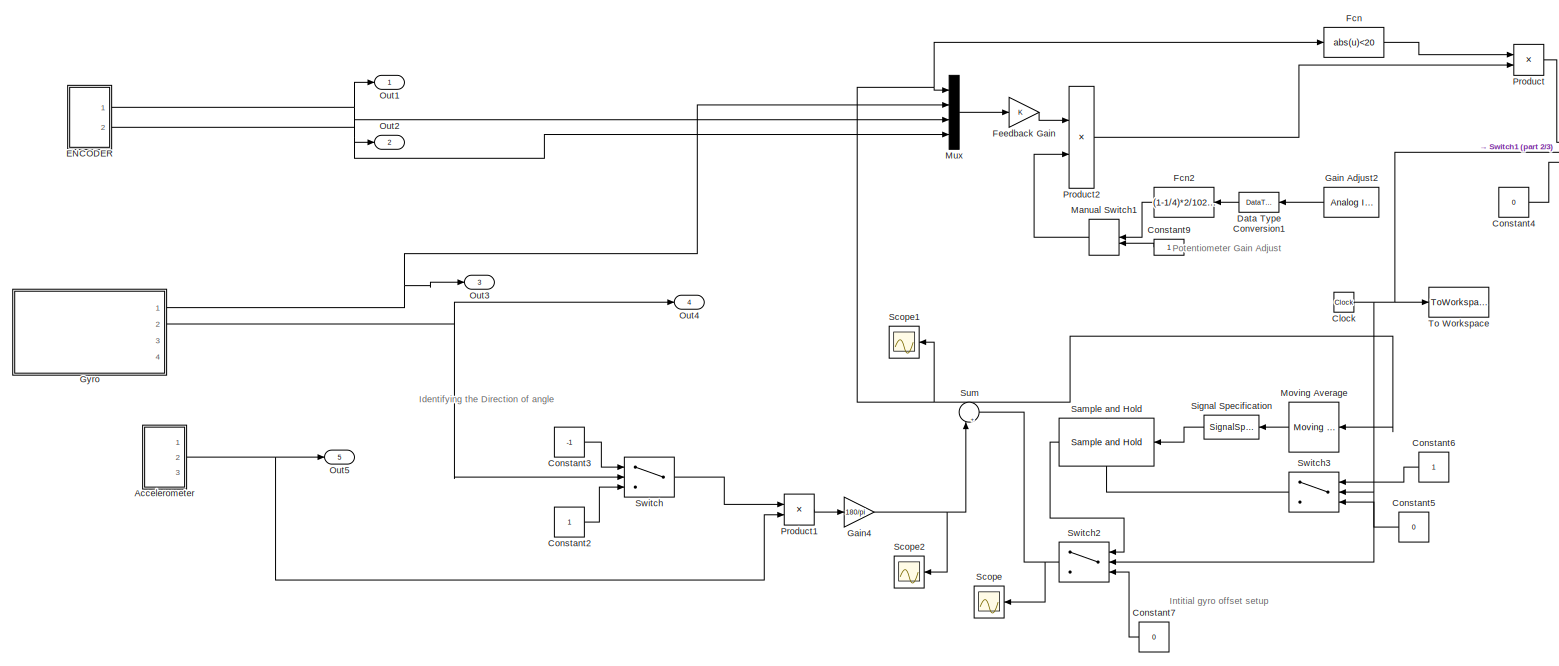
[diagram: root canvas - part 1/3, top left region]
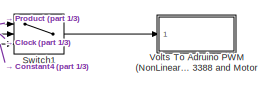
[diagram: root canvas - part 2/3, top center region]
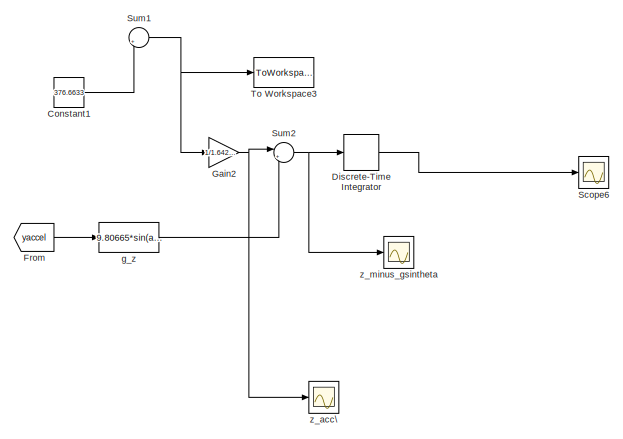
[diagram: root canvas - part 3/3, bottom right region]
MODEL slx_d5ed40e56a68
KIND model
CONFIG AbsTol = auto
CONFIG EnableMultiTasking = on
CONFIG FixedStep = auto
CONFIG MaxStep = auto
CONFIG MinStep = auto
CONFIG RelTol = 1e-3
CONFIG SampleTimeConstraint = Unconstrained
CONFIG Solver = FixedStepDiscrete
CONFIG SolverName = FixedStepDiscrete
CONFIG StartTime = 0.0
CONFIG StopTime = inf
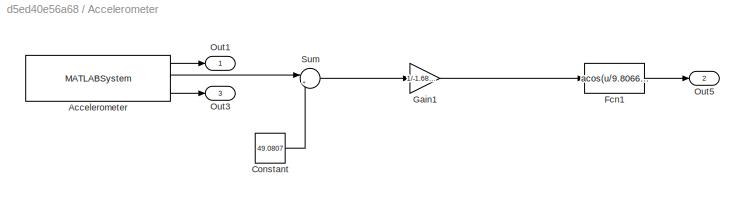
BLOCK [SubSystem] Accelerometer
  Ports = [0, 3]
  RequestExecContextInheritance = off
BLOCK [MATLABSystem] Accelerometer/Accelerometer
  MaskDisplay = disp('soMPU6050Accel');\nport_label('output',1,'xaccel');\nport_label('output',2,'yaccel');\nport_label('output',3,'zaccel');
  MaskType = soMPU6050Accel
  Ports = [0, 3]
  SimulateUsing = Code generation
  System = soMPU6050Accel
BLOCK [Constant] Accelerometer/Constant
  Value = 49.0807
BLOCK [Fcn] Accelerometer/Fcn1
  Expr = acos(u/9.80665)
BLOCK [Gain] Accelerometer/Gain1
  Gain = 1/-1.6809e+03
  OutDataTypeStr = Inherit: Inherit via internal rule
  ParamDataTypeStr = Inherit: Inherit via internal rule
  SaturateOnIntegerOverflow = off
BLOCK [Outport] Accelerometer/Out1
  IconDisplay = Port number
BLOCK [Outport] Accelerometer/Out3
  IconDisplay = Port number
  Port = 3
BLOCK [Outport] Accelerometer/Out5
  IconDisplay = Signal name
  Port = 2
BLOCK [Sum] Accelerometer/Sum
  IconShape = round
  InputSameDT = off
  Inputs = |++
  OutDataTypeStr = Inherit: Inherit via internal rule
  Ports = [2, 1]
  SaturateOnIntegerOverflow = off
BLOCK [Clock] Clock
BLOCK [Constant] Constant1
  Value = 376.6633
BLOCK [Constant] Constant2
BLOCK [Constant] Constant3
  Value = -1
BLOCK [Constant] Constant4
  Value = 0
BLOCK [Constant] Constant5
  Value = 0
BLOCK [Constant] Constant6
BLOCK [Constant] Constant7
  Value = 0
BLOCK [Constant] Constant9
BLOCK [DataTypeConversion] Data Type Conversion1
  OutDataTypeStr = double
  RndMeth = Floor
  SaturateOnIntegerOverflow = off
BLOCK [DiscreteIntegrator] Discrete-Time Integrator
  ICPrevOutput = DiscIntNeverNeededParam
  ICPrevScaledInput = DiscIntNeverNeededParam
  InitialConditionSetting = Auto
  Ports = [1, 1]
  SampleTime = -1
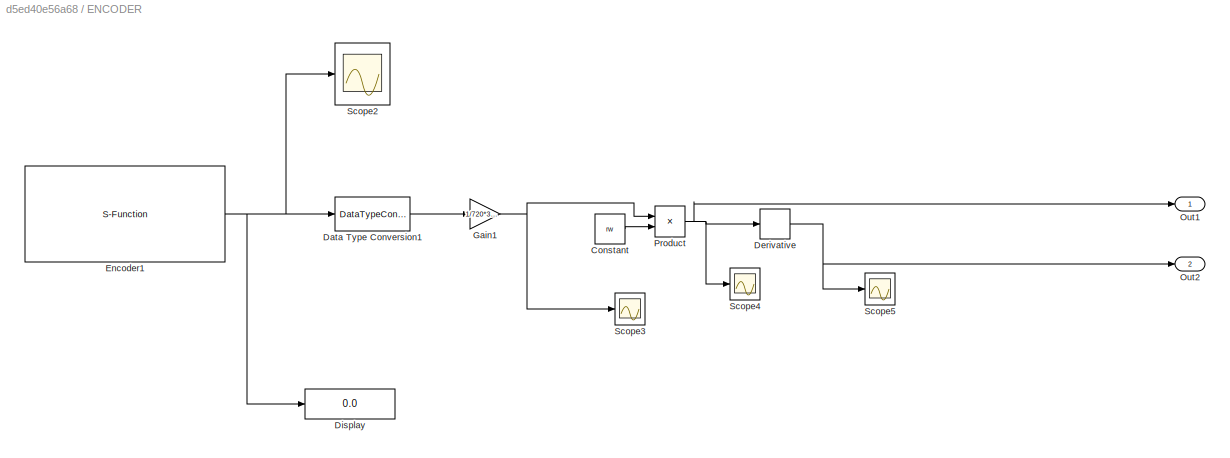
BLOCK [SubSystem] ENCODER 
  Ports = [0, 2]
  RequestExecContextInheritance = off
BLOCK [Constant] ENCODER /Constant
  Value = rw
BLOCK [DataTypeConversion] ENCODER /Data Type Conversion1
  OutDataTypeStr = double
  RndMeth = Floor
  SaturateOnIntegerOverflow = off
BLOCK [Derivative] ENCODER /Derivative
BLOCK [Display] ENCODER /Display
  Decimation = 1
  Ports = [1]
BLOCK [S-Function] ENCODER /Encoder1
  CopyFcn = set_param(gcbh,'LinkStatus','none')
  EnableBusSupport = off
  FunctionName = sf_Encoder_18_19
  InitFcn = try, set_param(gcb,'FunctionName','sf_Encoder_18_19'), end
  OpenFcn = sfunctionwizard(gcbh)
  Parameters = uint8(0),uint8(18),uint8(19)
  Ports = [0, 1]
  PreSaveFcn = try, set_param(gcb,'FunctionName','sf_Encoder_18_19'), end
  SFcnIsStateOwnerBlock = off
  SFunctionDeploymentMode = off
  SFunctionModules = sf_Encoder_18_19_wrapper
BLOCK [Gain] ENCODER /Gain1
  Gain = 1/720*360*pi/180
  OutDataTypeStr = Inherit: Inherit via internal rule
  ParamDataTypeStr = Inherit: Inherit via internal rule
  SaturateOnIntegerOverflow = off
BLOCK [Outport] ENCODER /Out1
  IconDisplay = Signal name
BLOCK [Outport] ENCODER /Out2
  IconDisplay = Signal name
  Port = 2
BLOCK [Product] ENCODER /Product
  InputSameDT = off
  OutDataTypeStr = Inherit: Inherit via internal rule
  Ports = [2, 1]
  RndMeth = Floor
  SaturateOnIntegerOverflow = off
BLOCK [Scope] ENCODER /Scope2
  Floating = off
  NumInputPorts = 1
  Ports = [1]
  ScopeSpecificationString = Simulink.scopes.TimeScopeBlockCfg('CurrentConfiguration', extmgr.ConfigurationSet(extmgr.Configuration('Core','General UI',true),extmgr.Configuration('Core','Source UI',true),extmgr.Configuration('Sources','WiredSimulink',true,'DataLoggingVariableName','ScopeData1'),extmgr.Configuration('Visuals','Time Domain',true,'SerializedDisplays',{struct('MinYLimReal','22.00000','MaxYLimReal','42.00000','YLa...<+1447ch>
BLOCK [Scope] ENCODER /Scope3
  Floating = off
  NumInputPorts = 1
  Ports = [1]
  ScopeSpecificationString = Simulink.scopes.TimeScopeBlockCfg('CurrentConfiguration', extmgr.ConfigurationSet(extmgr.Configuration('Core','General UI',true),extmgr.Configuration('Core','Source UI',true),extmgr.Configuration('Sources','WiredSimulink',true,'DataLoggingVariableName','ScopeData2'),extmgr.Configuration('Visuals','Time Domain',true,'SerializedDisplays',{struct('MinYLimReal','-1.00000','MaxYLimReal','1.00000','YLab...<+1420ch>
BLOCK [Scope] ENCODER /Scope4
  Floating = off
  NumInputPorts = 1
  Ports = [1]
  ScopeSpecificationString = Simulink.scopes.TimeScopeBlockCfg('CurrentConfiguration', extmgr.ConfigurationSet(extmgr.Configuration('Core','General UI',true),extmgr.Configuration('Core','Source UI',true),extmgr.Configuration('Sources','WiredSimulink',true,'DataLoggingVariableName','ScopeData1'),extmgr.Configuration('Visuals','Time Domain',true,'SerializedDisplays',{struct('MinYLimReal','-0.31771','MaxYLimReal','-0.11771','YLa...<+1448ch>
BLOCK [Scope] ENCODER /Scope5
  Floating = off
  NumInputPorts = 1
  Ports = [1]
  ScopeSpecificationString = Simulink.scopes.TimeScopeBlockCfg('CurrentConfiguration', extmgr.ConfigurationSet(extmgr.Configuration('Core','General UI',true),extmgr.Configuration('Core','Source UI',true),extmgr.Configuration('Sources','WiredSimulink',true,'DataLoggingVariableName','ScopeData2'),extmgr.Configuration('Visuals','Time Domain',true,'SerializedDisplays',{struct('MinYLimReal','-1.00000','MaxYLimReal','1.00000','YLab...<+1423ch>
BLOCK [Fcn] Fcn
  Expr = abs(u)<20
BLOCK [Fcn] Fcn2
  Expr = (1-1/4)*2/1023*u(1)+1/4
BLOCK [Gain] Feedback Gain
  Gain = K
  Multiplication = Matrix(K*u)
  OutDataTypeStr = Inherit: Inherit via internal rule
  ParamDataTypeStr = Inherit: Inherit via internal rule
  SaturateOnIntegerOverflow = off
BLOCK [From] From
  GotoTag = yaccel
BLOCK [Reference] Gain Adjust2  REF=arduinolib/Analog Input
  Ports = [0, 1]
  SourceBlock = arduinolib/Analog Input
  SourceProductBaseCode = ARDUINO
  SourceProductName = Simulink Support Package for Arduino Hardware
  SourceType = Arduino Analog Input
BLOCK [Gain] Gain2
  Gain = 1/1.6420e+03
  OutDataTypeStr = Inherit: Inherit via internal rule
  ParamDataTypeStr = Inherit: Inherit via internal rule
  SaturateOnIntegerOverflow = off
BLOCK [Gain] Gain4
  Gain = 180/pi
  OutDataTypeStr = Inherit: Inherit via internal rule
  ParamDataTypeStr = Inherit: Inherit via internal rule
  SaturateOnIntegerOverflow = off
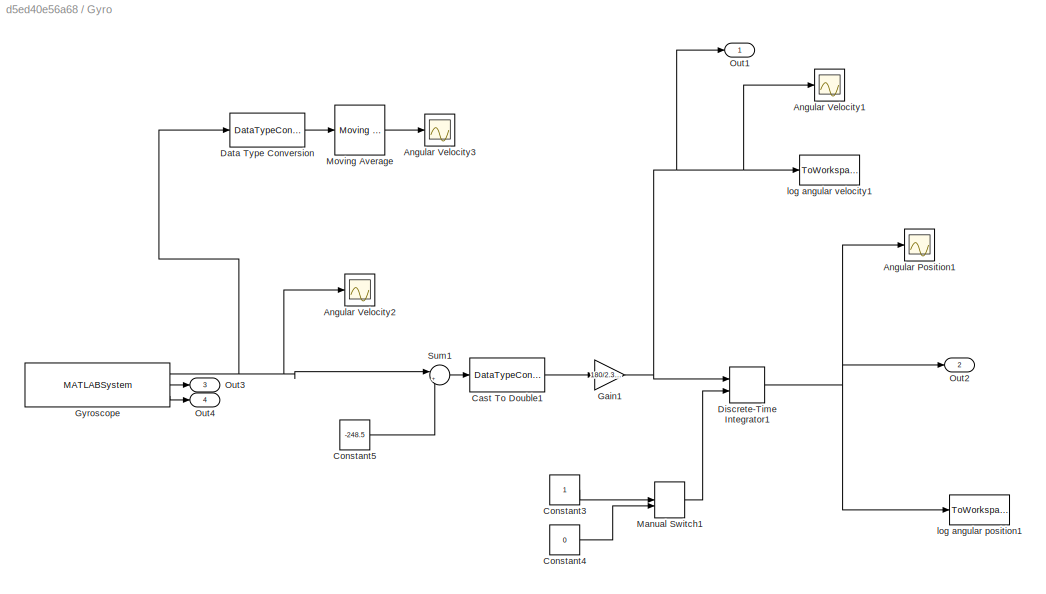
BLOCK [SubSystem] Gyro
  Ports = [0, 4]
  RequestExecContextInheritance = off
BLOCK [Scope] Gyro/Angular Position1
  Floating = off
  NumInputPorts = 1
  Ports = [1]
  ScopeSpecificationString = Simulink.scopes.TimeScopeBlockCfg('CurrentConfiguration', extmgr.ConfigurationSet(extmgr.Configuration('Core','General UI',true),extmgr.Configuration('Core','Source UI',true),extmgr.Configuration('Sources','WiredSimulink',true,'DataLoggingVariableName','ScopeData1'),extmgr.Configuration('Visuals','Time Domain',true,'SerializedDisplays',{struct('MinYLimReal','51.34352','MaxYLimReal','51.81475','YLa...<+1804ch>
BLOCK [Scope] Gyro/Angular Velocity1
  Floating = off
  NumInputPorts = 1
  Ports = [1]
  ScopeSpecificationString = Simulink.scopes.TimeScopeBlockCfg('CurrentConfiguration', extmgr.ConfigurationSet(extmgr.Configuration('Core','General UI',true),extmgr.Configuration('Core','Source UI',true),extmgr.Configuration('Sources','WiredSimulink',true,'DataLoggingVariableName','ScopeData2'),extmgr.Configuration('Visuals','Time Domain',true,'SerializedDisplays',{struct('MinYLimReal','-308.80943','MaxYLimReal','312.57174','...<+1531ch>
BLOCK [Scope] Gyro/Angular Velocity2
  Floating = off
  NumInputPorts = 1
  Ports = [1]
  ScopeSpecificationString = Simulink.scopes.TimeScopeBlockCfg('CurrentConfiguration', extmgr.ConfigurationSet(extmgr.Configuration('Core','General UI',true),extmgr.Configuration('Core','Source UI',true),extmgr.Configuration('Sources','WiredSimulink',true),extmgr.Configuration('Visuals','Time Domain',true,'SerializedDisplays',{struct('MinYLimReal','-40959.875','MaxYLimReal','40958.875','YLabelReal','','MinYLimMag','   0.00000...<+1528ch>
BLOCK [Scope] Gyro/Angular Velocity3
  Floating = off
  NumInputPorts = 1
  Ports = [1]
  ScopeSpecificationString = Simulink.scopes.TimeScopeBlockCfg('CurrentConfiguration', extmgr.ConfigurationSet(extmgr.Configuration('Core','General UI',true),extmgr.Configuration('Core','Source UI',true),extmgr.Configuration('Sources','WiredSimulink',true,'DataLoggingVariableName','ScopeData3'),extmgr.Configuration('Visuals','Time Domain',true,'SerializedDisplays',{struct('MinYLimReal','-4948.37381','MaxYLimReal','3597.3638',...<+1572ch>
BLOCK [DataTypeConversion] Gyro/Cast To Double1
  OutDataTypeStr = double
  RndMeth = Floor
  SaturateOnIntegerOverflow = off
BLOCK [Constant] Gyro/Constant3
BLOCK [Constant] Gyro/Constant4
  Value = 0
BLOCK [Constant] Gyro/Constant5
  Value = -248.5
BLOCK [DataTypeConversion] Gyro/Data Type Conversion
  OutDataTypeStr = double
  RndMeth = Floor
  SaturateOnIntegerOverflow = off
BLOCK [DiscreteIntegrator] Gyro/Discrete-Time Integrator1
  ExternalReset = either
  ICPrevOutput = DiscIntNeverNeededParam
  ICPrevScaledInput = DiscIntNeverNeededParam
  InitialConditionSetting = Auto
  Ports = [2, 1]
  SampleTime = -1
BLOCK [Gain] Gyro/Gain1
  Gain = 180/2.373e4
  OutDataTypeStr = Inherit: Inherit via internal rule
  ParamDataTypeStr = Inherit: Inherit via internal rule
  SaturateOnIntegerOverflow = off
BLOCK [MATLABSystem] Gyro/Gyroscope
  DLPFmode = 0
  MaskDisplay = disp('soMPU6050Gyro');\nport_label('output',1,'xvel');\nport_label('output',2,'yvel');\nport_label('output',3,'zvel');
  MaskType = soMPU6050Gyro
  Ports = [0, 3]
  System = soMPU6050Gyro
BLOCK [ManualSwitch] Gyro/Manual Switch1
BLOCK [Reference] Gyro/Moving Average  REF=dspstat3/Moving
Average
  Ports = [1, 1]
  SourceBlock = dspstat3/Moving\nAverage
  SourceProductBaseCode = DS
  SourceProductName = DSP System Toolbox
  SourceType = dsp.simulink.MovingAverage
BLOCK [Outport] Gyro/Out1
  IconDisplay = Signal name
BLOCK [Outport] Gyro/Out2
  IconDisplay = Signal name
  Port = 2
BLOCK [Outport] Gyro/Out3
  IconDisplay = Port number
  Port = 3
BLOCK [Outport] Gyro/Out4
  IconDisplay = Port number
  Port = 4
BLOCK [Sum] Gyro/Sum1
  IconShape = round
  InputSameDT = off
  Inputs = |+-
  OutDataTypeStr = Inherit: Inherit via internal rule
  Ports = [2, 1]
  SaturateOnIntegerOverflow = off
BLOCK [ToWorkspace] Gyro/log angular position1
  FixptAsFi = on
  MaxDataPoints = inf
  Ports = [1]
  SampleTime = -1
  Save2DSignal = 3-D array (concatenate along third dimension)
  VariableName = a_pos1
BLOCK [ToWorkspace] Gyro/log angular velocity1
  FixptAsFi = on
  MaxDataPoints = inf
  Ports = [1]
  SampleTime = -1
  Save2DSignal = 3-D array (concatenate along third dimension)
  VariableName = a_vel1
BLOCK [ManualSwitch] Manual Switch1
  CurrentSetting = 0
BLOCK [Reference] Moving Average  REF=dspstat3/Moving
Average
  Ports = [1, 1]
  SourceBlock = dspstat3/Moving\nAverage
  SourceProductBaseCode = DS
  SourceProductName = DSP System Toolbox
  SourceType = dsp.simulink.MovingAverage
BLOCK [Mux] Mux
  DisplayOption = bar
  Ports = [4, 1]
BLOCK [Outport] Out1
  IconDisplay = Signal name
  SignalName = Position
BLOCK [Outport] Out2
  IconDisplay = Signal name
  Port = 2
  SignalName = Velocity
BLOCK [Outport] Out3
  IconDisplay = Signal name
  Port = 3
  SignalName = Angular Velocity
BLOCK [Outport] Out4
  IconDisplay = Signal name
  Port = 4
  SignalName = Angular Position
BLOCK [Outport] Out5
  IconDisplay = Signal name
  Port = 5
  SignalName = abs_alpha
BLOCK [Product] Product
  InputSameDT = off
  OutDataTypeStr = Inherit: Inherit via internal rule
  Ports = [2, 1]
  RndMeth = Floor
  SaturateOnIntegerOverflow = off
BLOCK [Product] Product1
  InputSameDT = off
  OutDataTypeStr = Inherit: Inherit via internal rule
  Ports = [2, 1]
  RndMeth = Floor
  SaturateOnIntegerOverflow = off
BLOCK [Product] Product2
  InputSameDT = off
  OutDataTypeStr = Inherit: Inherit via internal rule
  Ports = [2, 1]
  SaturateOnIntegerOverflow = off
BLOCK [Reference] Sample and Hold  REF=dspsigops/Sample
and Hold
  Ports = [1, 1, 0, 1]
  SourceBlock = dspsigops/Sample\nand Hold
  SourceProductBaseCode = DS
  SourceProductName = DSP System Toolbox
  SourceType = Sample and Hold
BLOCK [Scope] Scope
  Floating = off
  NumInputPorts = 1
  Ports = [1]
  ScopeSpecificationString = Simulink.scopes.TimeScopeBlockCfg('CurrentConfiguration', extmgr.ConfigurationSet(extmgr.Configuration('Core','General UI',true),extmgr.Configuration('Core','Source UI',true),extmgr.Configuration('Sources','WiredSimulink',true,'DataLoggingVariableName','ScopeData1'),extmgr.Configuration('Visuals','Time Domain',true,'SerializedDisplays',{struct('MinYLimReal','-2.19941','MaxYLimReal','-0.19941','YLa...<+1462ch>
BLOCK [Scope] Scope1
  Floating = off
  NumInputPorts = 1
  Ports = [1]
  ScopeSpecificationString = Simulink.scopes.TimeScopeBlockCfg('CurrentConfiguration', extmgr.ConfigurationSet(extmgr.Configuration('Core','General UI',true),extmgr.Configuration('Core','Source UI',true),extmgr.Configuration('Sources','WiredSimulink',true,'DataLoggingVariableName','ScopeData2'),extmgr.Configuration('Visuals','Time Domain',true,'SerializedDisplays',{struct('MinYLimReal','-2.91738','MaxYLimReal','38.25057','YLa...<+1500ch>
BLOCK [Scope] Scope2
  Floating = off
  NumInputPorts = 1
  Ports = [1]
  ScopeSpecificationString = Simulink.scopes.TimeScopeBlockCfg('CurrentConfiguration', extmgr.ConfigurationSet(extmgr.Configuration('Core','General UI',true),extmgr.Configuration('Core','Source UI',true),extmgr.Configuration('Sources','WiredSimulink',true,'DataLoggingVariableName','ScopeData3'),extmgr.Configuration('Visuals','Time Domain',true,'SerializedDisplays',{struct('MinYLimReal','-4.1168','MaxYLimReal','37.05116','YLab...<+1473ch>
BLOCK [Scope] Scope6
  Floating = off
  NumInputPorts = 1
  Ports = [1]
  ScopeSpecificationString = Simulink.scopes.TimeScopeBlockCfg('CurrentConfiguration', extmgr.ConfigurationSet(extmgr.Configuration('Core','General UI',true),extmgr.Configuration('Core','Source UI',true),extmgr.Configuration('Sources','WiredSimulink',true,'DataLoggingVariableName','ScopeData6'),extmgr.Configuration('Visuals','Time Domain',true,'SerializedDisplays',{struct('MinYLimReal','-0.01557','MaxYLimReal','0.14012','YLab...<+1501ch>
BLOCK [SignalSpecification] Signal Specification
  Dimensions = 1
  OutDataTypeStr = double
BLOCK [Sum] Sum
  IconShape = round
  InputSameDT = off
  Inputs = |+-
  OutDataTypeStr = Inherit: Inherit via internal rule
  Ports = [2, 1]
  SaturateOnIntegerOverflow = off
BLOCK [Sum] Sum1
  IconShape = round
  InputSameDT = off
  Inputs = |++
  OutDataTypeStr = Inherit: Inherit via internal rule
  Ports = [2, 1]
  SaturateOnIntegerOverflow = off
BLOCK [Sum] Sum2
  IconShape = round
  InputSameDT = off
  Inputs = |+-
  OutDataTypeStr = Inherit: Inherit via internal rule
  Ports = [2, 1]
  SaturateOnIntegerOverflow = off
BLOCK [Switch] Switch
  Criteria = u2 > Threshold
  InputSameDT = off
  SaturateOnIntegerOverflow = off
BLOCK [Switch] Switch1
  Criteria = u2 > Threshold
  InputSameDT = off
  SaturateOnIntegerOverflow = off
  Threshold = 10
BLOCK [Switch] Switch2
  Criteria = u2 > Threshold
  InputSameDT = off
  SaturateOnIntegerOverflow = off
  Threshold = 10
BLOCK [Switch] Switch3
  Criteria = u2 > Threshold
  InputSameDT = off
  SaturateOnIntegerOverflow = off
  Threshold = 10
BLOCK [ToWorkspace] To Workspace
  FixptAsFi = on
  MaxDataPoints = inf
  Ports = [1]
  SampleTime = -1
  Save2DSignal = 3-D array (concatenate along third dimension)
  VariableName = t
BLOCK [ToWorkspace] To Workspace3
  FixptAsFi = on
  MaxDataPoints = inf
  Ports = [1]
  SampleTime = -1
  Save2DSignal = 2-D array (concatenate along first dimension)
  VariableName = t3
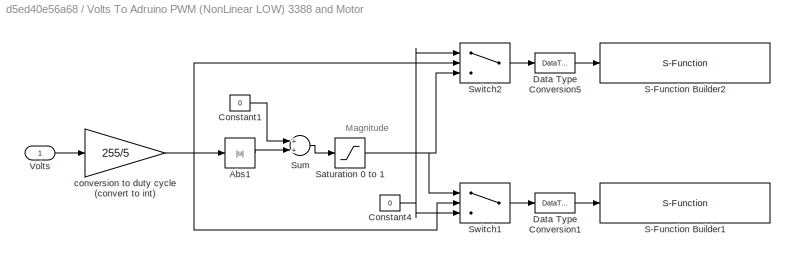
BLOCK [SubSystem] Volts To Adruino PWM (NonLinear LOW) 3388 and Motor
  Ports = [1]
  RequestExecContextInheritance = off
BLOCK [Abs] Volts To Adruino PWM (NonLinear LOW) 3388 and Motor/Abs1
  SaturateOnIntegerOverflow = off
BLOCK [Constant] Volts To Adruino PWM (NonLinear LOW) 3388 and Motor/Constant1
  Value = 0
BLOCK [Constant] Volts To Adruino PWM (NonLinear LOW) 3388 and Motor/Constant4
  Value = 0
BLOCK [DataTypeConversion] Volts To Adruino PWM (NonLinear LOW) 3388 and Motor/Data Type Conversion1
  OutDataTypeStr = uint8
  RndMeth = Floor
  SaturateOnIntegerOverflow = off
BLOCK [DataTypeConversion] Volts To Adruino PWM (NonLinear LOW) 3388 and Motor/Data Type Conversion5
  OutDataTypeStr = uint8
  RndMeth = Floor
  SaturateOnIntegerOverflow = off
BLOCK [S-Function] Volts To Adruino PWM (NonLinear LOW) 3388 and Motor/S-Function Builder1
  CopyFcn = set_param(gcbh,'LinkStatus','none')
  EnableBusSupport = off
  FunctionName = sfcn_PWM45
  InitFcn = try, set_param(gcb,'FunctionName','sfcn_PWM45'), end
  OpenFcn = sfunctionwizard(gcbh)
  Parameters = uint8(5)
  Ports = [1]
  PreSaveFcn = try, set_param(gcb,'FunctionName','sfcn_PWM45'), end
  SFcnIsStateOwnerBlock = off
  SFunctionDeploymentMode = off
  SFunctionModules = sfcn_PWM45_wrapper
BLOCK [S-Function] Volts To Adruino PWM (NonLinear LOW) 3388 and Motor/S-Function Builder2
  CopyFcn = set_param(gcbh,'LinkStatus','none')
  EnableBusSupport = off
  FunctionName = sfcn_PWM44
  InitFcn = try, set_param(gcb,'FunctionName','sfcn_PWM44'), end
  OpenFcn = sfunctionwizard(gcbh)
  Parameters = uint8(2)
  Ports = [1]
  PreSaveFcn = try, set_param(gcb,'FunctionName','sfcn_PWM44'), end
  SFcnIsStateOwnerBlock = off
  SFunctionDeploymentMode = off
  SFunctionModules = sfcn_PWM44_wrapper
BLOCK [Saturate] Volts To Adruino PWM (NonLinear LOW) 3388 and Motor/Saturation 0 to 1
  InputPortMap = u0
  LowerLimit = 0
  Ports = [1, 1]
  UpperLimit = 255
BLOCK [Sum] Volts To Adruino PWM (NonLinear LOW) 3388 and Motor/Sum
  InputSameDT = off
  OutDataTypeStr = Inherit: Inherit via internal rule
  Ports = [2, 1]
  SaturateOnIntegerOverflow = off
BLOCK [Switch] Volts To Adruino PWM (NonLinear LOW) 3388 and Motor/Switch1
  InputSameDT = off
  SaturateOnIntegerOverflow = off
BLOCK [Switch] Volts To Adruino PWM (NonLinear LOW) 3388 and Motor/Switch2
  InputSameDT = off
  SaturateOnIntegerOverflow = off
BLOCK [Inport] Volts To Adruino PWM (NonLinear LOW) 3388 and Motor/Volts
  IconDisplay = Port number
BLOCK [Gain] Volts To Adruino PWM (NonLinear LOW) 3388 and Motor/conversion to duty cycle (convert to int)
  Gain = 255/5
  OutDataTypeStr = int16
  ParamDataTypeStr = Inherit: Inherit via internal rule
  SaturateOnIntegerOverflow = off
BLOCK [Fcn] g_z
  Expr = 9.80665*sin(acos(u/9.80665))
BLOCK [Scope] z_acc\
  Floating = off
  NumInputPorts = 1
  Ports = [1]
  ScopeSpecificationString = Simulink.scopes.TimeScopeBlockCfg('CurrentConfiguration', extmgr.ConfigurationSet(extmgr.Configuration('Core','General UI',true),extmgr.Configuration('Core','Source UI',true),extmgr.Configuration('Sources','WiredSimulink',true,'DataLoggingVariableName','ScopeData1'),extmgr.Configuration('Visuals','Time Domain',true,'SerializedDisplays',{struct('MinYLimReal','9.69681','MaxYLimReal','9.95564','YLabe...<+1480ch>
BLOCK [Scope] z_minus_gsintheta
  Floating = off
  NumInputPorts = 1
  Ports = [1]
  ScopeSpecificationString = Simulink.scopes.TimeScopeBlockCfg('CurrentConfiguration', extmgr.ConfigurationSet(extmgr.Configuration('Core','General UI',true),extmgr.Configuration('Core','Source UI',true),extmgr.Configuration('Sources','WiredSimulink',true,'DataLoggingVariableName','ScopeData2'),extmgr.Configuration('Visuals','Time Domain',true,'SerializedDisplays',{struct('MinYLimReal','-10.57726','MaxYLimReal','-8.57726','YL...<+1487ch>
ANNOTATION (root): Identifying the Direction of angle
ANNOTATION (root): Intitial gyro offset setup
ANNOTATION (root): Potentiometer Gain Adjust
ANNOTATION Volts To Adruino PWM (NonLinear LOW) 3388 and Motor: Magnitude
LINE Accelerometer/Accelerometer:1 -> Accelerometer/Out1:1
LINE Accelerometer/Accelerometer:2 -> Accelerometer/Sum:1
LINE Accelerometer/Accelerometer:3 -> Accelerometer/Out3:1
LINE Accelerometer/Constant:1 -> Accelerometer/Sum:2
LINE Accelerometer/Fcn1:1 -> Accelerometer/Out5:1
LINE Accelerometer/Gain1:1 -> Accelerometer/Fcn1:1
LINE Accelerometer/Sum:1 -> Accelerometer/Gain1:1
NET Accelerometer:2 -> Out5:1, Product1:2
NET Clock:1 -> Switch1:2, Switch2:2, Switch3:2, To Workspace:1
LINE Constant1:1 -> Sum1:2
LINE Constant2:1 -> Switch:3
LINE Constant3:1 -> Switch:1
LINE Constant4:1 -> Switch1:3
LINE Constant5:1 -> Switch3:3
LINE Constant6:1 -> Switch3:1
LINE Constant7:1 -> Switch2:3
LINE Constant9:1 -> Manual Switch1:2
LINE Data Type Conversion1:1 -> Fcn2:1
LINE Discrete-Time Integrator:1 -> Scope6:1
LINE ENCODER /Constant:1 -> ENCODER /Product:2
LINE ENCODER /Data Type Conversion1:1 -> ENCODER /Gain1:1
NET ENCODER /Derivative:1 -> ENCODER /Out2:1, ENCODER /Scope5:1
NET ENCODER /Encoder1:1 -> ENCODER /Data Type Conversion1:1, ENCODER /Display:1, ENCODER /Scope2:1
NET ENCODER /Gain1:1 -> ENCODER /Product:1, ENCODER /Scope3:1
NET ENCODER /Product:1 -> ENCODER /Derivative:1, ENCODER /Out1:1, ENCODER /Scope4:1
NET ENCODER :1 -> Mux:3, Out1:1
NET ENCODER :2 -> Mux:4, Out2:1
LINE Fcn2:1 -> Manual Switch1:1
LINE Fcn:1 -> Product:1
LINE Feedback Gain:1 -> Product2:1
LINE From:1 -> g_z:1
LINE Gain Adjust2:1 -> Data Type Conversion1:1
NET Gain2:1 -> Sum2:1, z_acc\:1
NET Gain4:1 -> Scope2:1, Sum:1
LINE Gyro/Cast To Double1:1 -> Gyro/Gain1:1
LINE Gyro/Constant3:1 -> Gyro/Manual Switch1:1
LINE Gyro/Constant4:1 -> Gyro/Manual Switch1:2
LINE Gyro/Constant5:1 -> Gyro/Sum1:2
LINE Gyro/Data Type Conversion:1 -> Gyro/Moving Average:1
NET Gyro/Discrete-Time Integrator1:1 -> Gyro/Angular Position1:1, Gyro/Out2:1, Gyro/log angular position1:1
NET Gyro/Gain1:1 -> Gyro/Angular Velocity1:1, Gyro/Discrete-Time Integrator1:1, Gyro/Out1:1, Gyro/log angular velocity1:1
NET Gyro/Gyroscope:1 -> Gyro/Angular Velocity2:1, Gyro/Data Type Conversion:1, Gyro/Sum1:1
LINE Gyro/Gyroscope:2 -> Gyro/Out3:1
LINE Gyro/Gyroscope:3 -> Gyro/Out4:1
LINE Gyro/Manual Switch1:1 -> Gyro/Discrete-Time Integrator1:2
LINE Gyro/Moving Average:1 -> Gyro/Angular Velocity3:1
LINE Gyro/Sum1:1 -> Gyro/Cast To Double1:1
NET Gyro:1 -> Mux:2, Out3:1
NET Gyro:2 -> Out4:1, Switch:2
LINE Manual Switch1:1 -> Product2:2
LINE Moving Average:1 -> Signal Specification:1
LINE Mux:1 -> Feedback Gain:1
LINE Product1:1 -> Gain4:1
LINE Product2:1 -> Product:2
LINE Product:1 -> Switch1:1
LINE Sample and Hold:1 -> Switch2:1
LINE Signal Specification:1 -> Sample and Hold:1
NET Sum1:1 -> Gain2:1, To Workspace3:1
NET Sum2:1 -> Discrete-Time Integrator:1, z_minus_gsintheta:1
NET Sum:1 -> Fcn:1, Moving Average:1, Mux:1, Scope1:1
LINE Switch1:1 -> Volts To Adruino PWM (NonLinear LOW) 3388 and Motor:1
NET Switch2:1 -> Scope:1, Sum:2
LINE Switch3:1 -> Sample and Hold:trigger
LINE Switch:1 -> Product1:1
LINE Volts To Adruino PWM (NonLinear LOW) 3388 and Motor/Abs1:1 -> Volts To Adruino PWM (NonLinear LOW) 3388 and Motor/Sum:2
LINE Volts To Adruino PWM (NonLinear LOW) 3388 and Motor/Constant1:1 -> Volts To Adruino PWM (NonLinear LOW) 3388 and Motor/Sum:1
NET Volts To Adruino PWM (NonLinear LOW) 3388 and Motor/Constant4:1 -> Volts To Adruino PWM (NonLinear LOW) 3388 and Motor/Switch1:3, Volts To Adruino PWM (NonLinear LOW) 3388 and Motor/Switch2:1
LINE Volts To Adruino PWM (NonLinear LOW) 3388 and Motor/Data Type Conversion1:1 -> Volts To Adruino PWM (NonLinear LOW) 3388 and Motor/S-Function Builder1:1
LINE Volts To Adruino PWM (NonLinear LOW) 3388 and Motor/Data Type Conversion5:1 -> Volts To Adruino PWM (NonLinear LOW) 3388 and Motor/S-Function Builder2:1
NET Volts To Adruino PWM (NonLinear LOW) 3388 and Motor/Saturation 0 to 1:1 -> Volts To Adruino PWM (NonLinear LOW) 3388 and Motor/Switch1:1, Volts To Adruino PWM (NonLinear LOW) 3388 and Motor/Switch2:3
LINE Volts To Adruino PWM (NonLinear LOW) 3388 and Motor/Sum:1 -> Volts To Adruino PWM (NonLinear LOW) 3388 and Motor/Saturation 0 to 1:1
LINE Volts To Adruino PWM (NonLinear LOW) 3388 and Motor/Switch1:1 -> Volts To Adruino PWM (NonLinear LOW) 3388 and Motor/Data Type Conversion1:1
LINE Volts To Adruino PWM (NonLinear LOW) 3388 and Motor/Switch2:1 -> Volts To Adruino PWM (NonLinear LOW) 3388 and Motor/Data Type Conversion5:1
LINE Volts To Adruino PWM (NonLinear LOW) 3388 and Motor/Volts:1 -> Volts To Adruino PWM (NonLinear LOW) 3388 and Motor/conversion to duty cycle (convert to int):1
NET Volts To Adruino PWM (NonLinear LOW) 3388 and Motor/conversion to duty cycle (convert to int):1 -> Volts To Adruino PWM (NonLinear LOW) 3388 and Motor/Abs1:1, Volts To Adruino PWM (NonLinear LOW) 3388 and Motor/Switch1:2, Volts To Adruino PWM (NonLinear LOW) 3388 and Motor/Switch2:2
LINE g_z:1 -> Sum2:2
note: NET lines group one-source signal fan-out (src -> all destinations, sorted); 1:1 wires keep LINE
